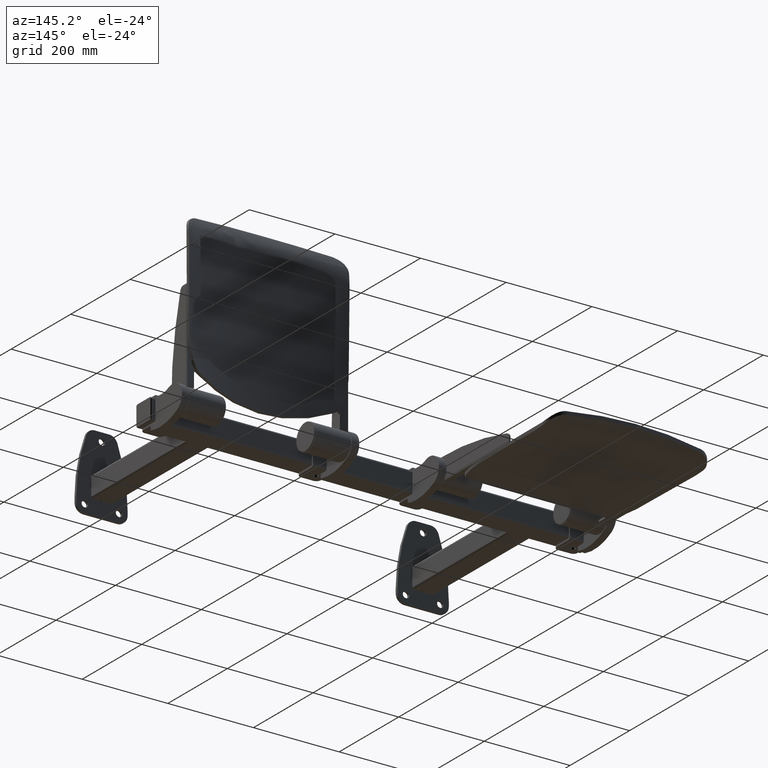
[diagram: clean part render]
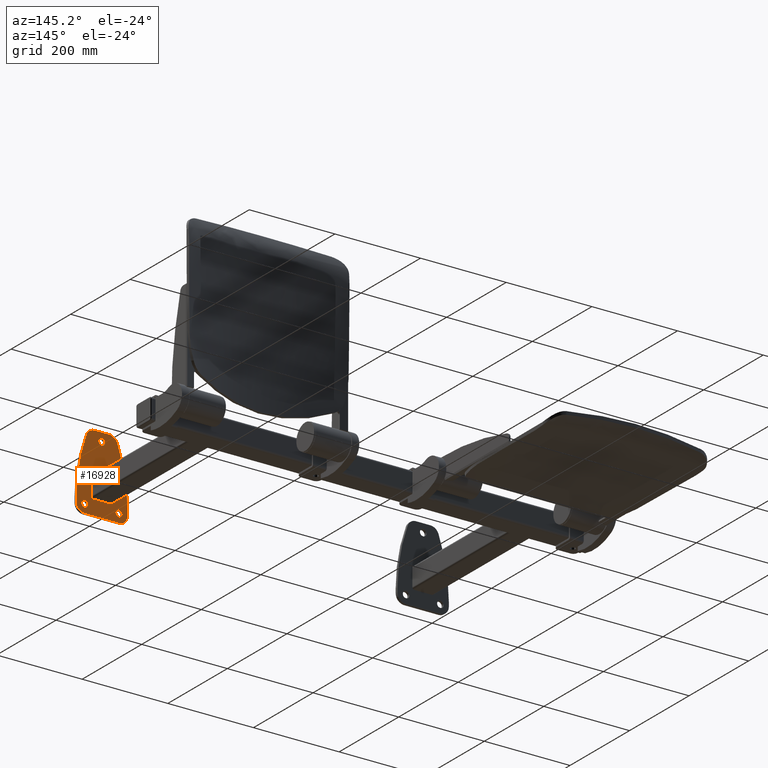
[diagram: same view with one face highlighted and labeled with its STEP entity id]
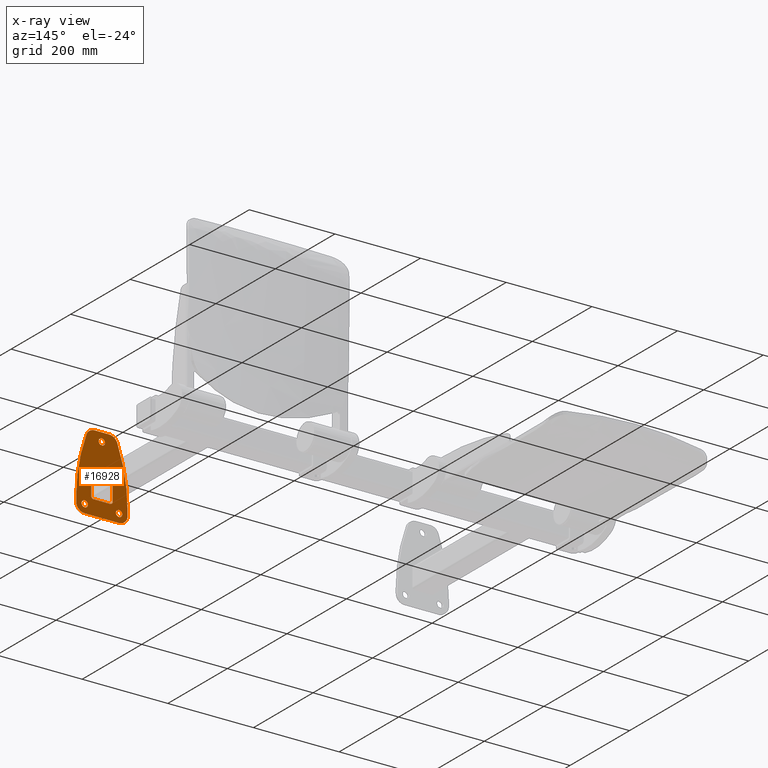
[diagram: x-ray of the same camera — body ghosted, the highlighted face saturated]
A machine part, auxiliary view. The second image highlights one B-rep face of the part: STEP entity #16928.
The next image is the same camera in x-ray: the body ghosted, the highlighted face saturated — about 0% of this face is hidden behind the body in this view.
In plain terms, the highlighted planar face has unit normal (0, -1, 0).
Its self-contained STEP definition (entity closure, byte-faithful):
#12 = AXIS2_PLACEMENT_3D ( 'NONE', #12852, #12849, #12854 ) ;
#177 = CARTESIAN_POINT ( 'NONE',  ( 400.0000000000000000, 6.000000000000000000, 20.00000000000000000 ) ) ;
#184 = CARTESIAN_POINT ( 'NONE',  ( 350.0000000000000000, 6.000000000000000000, -19.99999999999999600 ) ) ;
#185 = CARTESIAN_POINT ( 'NONE',  ( 350.0000000000000000, 6.000000000000000000, 20.00000000000000000 ) ) ;
#472 = LINE ( 'NONE', #8030, #475 ) ;
#475 = VECTOR ( 'NONE', #8031, 1000.000000000000000 ) ;
#487 = LINE ( 'NONE', #11218, #491 ) ;
#491 = VECTOR ( 'NONE', #11223, 1000.000000000000000 ) ;
#549 = CARTESIAN_POINT ( 'NONE',  ( 375.0000000000000000, 6.000000000000000000, 100.0000000000000000 ) ) ;
#550 = DIRECTION ( 'NONE',  ( -0.0000000000000000000, 1.000000000000000000, -0.0000000000000000000 ) ) ;
#551 = DIRECTION ( 'NONE',  ( 0.0000000000000000000, 0.0000000000000000000, -1.000000000000000000 ) ) ;
#1694 = FACE_OUTER_BOUND ( 'NONE', #14785, .T. ) ;
#1696 = FACE_BOUND ( 'NONE', #14787, .T. ) ;
#1697 = FACE_BOUND ( 'NONE', #14907, .T. ) ;
#1699 = FACE_BOUND ( 'NONE', #14783, .T. ) ;
#1701 = FACE_BOUND ( 'NONE', #14784, .T. ) ;
#1805 = CARTESIAN_POINT ( 'NONE',  ( 435.0000000000000600, 6.000000000000000000, -39.99999999999997900 ) ) ;
#1882 = CARTESIAN_POINT ( 'NONE',  ( 400.0000000000000000, 6.000000000000000000, -19.99999999999999600 ) ) ;
#1889 = CARTESIAN_POINT ( 'NONE',  ( 314.9999999999999400, 6.000000000000000000, -39.99999999999995000 ) ) ;
#1891 = CARTESIAN_POINT ( 'NONE',  ( 415.0000000000000600, 6.000000000000000000, -60.00000000000005000 ) ) ;
#1914 = CARTESIAN_POINT ( 'NONE',  ( 355.0000000000000000, 6.000000000000000000, 25.00000000000000000 ) ) ;
#1915 = CARTESIAN_POINT ( 'NONE',  ( 355.0000000000000000, 6.000000000000000000, -25.00000000000000000 ) ) ;
#1917 = CARTESIAN_POINT ( 'NONE',  ( 395.0000000000000000, 6.000000000000000000, -25.00000000000000000 ) ) ;
#2007 = CARTESIAN_POINT ( 'NONE',  ( 395.0000000000000000, 6.000000000000000000, 25.00000000000000000 ) ) ;
#2030 = VERTEX_POINT ( 'NONE', #177 ) ;
#2037 = VERTEX_POINT ( 'NONE', #184 ) ;
#2038 = VERTEX_POINT ( 'NONE', #185 ) ;
#2348 = CARTESIAN_POINT ( 'NONE',  ( 415.0000000000000600, 6.000000000000000000, -40.00000000000004300 ) ) ;
#2349 = DIRECTION ( 'NONE',  ( -0.0000000000000000000, 1.000000000000000000, 0.0000000000000000000 ) ) ;
#2350 = DIRECTION ( 'NONE',  ( -2.775557561562891700E-015, 0.0000000000000000000, -1.000000000000000000 ) ) ;
#2353 = CARTESIAN_POINT ( 'NONE',  ( 355.0000000000000000, 6.000000000000005300, -19.99999999999999600 ) ) ;
#2354 = DIRECTION ( 'NONE',  ( 0.0000000000000000000, -1.000000000000000000, -0.0000000000000000000 ) ) ;
#2355 = DIRECTION ( 'NONE',  ( 0.0000000000000000000, 0.0000000000000000000, -1.000000000000000000 ) ) ;
#2356 = CARTESIAN_POINT ( 'NONE',  ( 400.0000000000000000, 6.000000000000000000, 25.00000000000000000 ) ) ;
#2357 = DIRECTION ( 'NONE',  ( -0.0000000000000000000, -0.0000000000000000000, -1.000000000000000000 ) ) ;
#2360 = CARTESIAN_POINT ( 'NONE',  ( 395.0000000000000000, 6.000000000000000000, 20.00000000000000000 ) ) ;
#2361 = DIRECTION ( 'NONE',  ( 0.0000000000000000000, -1.000000000000000000, -0.0000000000000000000 ) ) ;
#2362 = DIRECTION ( 'NONE',  ( 0.0000000000000000000, 0.0000000000000000000, -1.000000000000000000 ) ) ;
#2419 = CARTESIAN_POINT ( 'NONE',  ( 315.0000000000000000, 6.000000000000000000, 119.9999999999999700 ) ) ;
#2420 = DIRECTION ( 'NONE',  ( 1.000000000000000000, 0.0000000000000000000, -2.312964634635743000E-016 ) ) ;
#2421 = CARTESIAN_POINT ( 'NONE',  ( 715.0000000000000000, 6.000000000000000000, -29.99999999999995700 ) ) ;
#2422 = DIRECTION ( 'NONE',  ( -0.0000000000000000000, -1.000000000000000000, -0.0000000000000000000 ) ) ;
#2423 = DIRECTION ( 'NONE',  ( 0.0000000000000000000, 0.0000000000000000000, 1.000000000000000000 ) ) ;
#2426 = CARTESIAN_POINT ( 'NONE',  ( 357.9285785728573600, 6.000000000000000000, 99.99999999999995700 ) ) ;
#2427 = DIRECTION ( 'NONE',  ( -0.0000000000000000000, 1.000000000000000000, 0.0000000000000000000 ) ) ;
#2428 = DIRECTION ( 'NONE',  ( 2.775557561562891000E-015, 0.0000000000000000000, -1.000000000000000000 ) ) ;
#2433 = CARTESIAN_POINT ( 'NONE',  ( 392.0714214271425800, 6.000000000000000000, 99.99999999999992900 ) ) ;
#2434 = DIRECTION ( 'NONE',  ( -0.0000000000000000000, 1.000000000000000000, 0.0000000000000000000 ) ) ;
#2435 = DIRECTION ( 'NONE',  ( 0.0000000000000000000, 0.0000000000000000000, -1.000000000000000000 ) ) ;
#2437 = CARTESIAN_POINT ( 'NONE',  ( 35.00000000000002800, 6.000000000000000000, -29.99999999999994300 ) ) ;
#2438 = DIRECTION ( 'NONE',  ( 0.0000000000000000000, -1.000000000000000000, 0.0000000000000000000 ) ) ;
#2439 = DIRECTION ( 'NONE',  ( 0.0000000000000000000, 0.0000000000000000000, -1.000000000000000000 ) ) ;
#6034 = CIRCLE ( 'NONE', #8375, 7.500000000000013300 ) ;
#6036 = CIRCLE ( 'NONE', #8376, 5.000000000000000900 ) ;
#6040 = CIRCLE ( 'NONE', #8377, 7.500000000000020400 ) ;
#6045 = LINE ( 'NONE', #11185, #6077 ) ;
#6047 = LINE ( 'NONE', #11162, #6049 ) ;
#6049 = VECTOR ( 'NONE', #11166, 1000.000000000000000 ) ;
#6051 = CIRCLE ( 'NONE', #8378, 7.500000000000013300 ) ;
#6053 = LINE ( 'NONE', #11167, #6058 ) ;
#6055 = CIRCLE ( 'NONE', #8379, 5.000000000000000900 ) ;
#6058 = VECTOR ( 'NONE', #11168, 1000.000000000000000 ) ;
#6062 = LINE ( 'NONE', #11175, #6066 ) ;
#6064 = CIRCLE ( 'NONE', #8381, 20.00000000000000400 ) ;
#6066 = VECTOR ( 'NONE', #11176, 1000.000000000000000 ) ;
#6077 = VECTOR ( 'NONE', #11189, 1000.000000000000000 ) ;
#6107 = CIRCLE ( 'NONE', #8385, 19.99999999999999600 ) ;
#6112 = CIRCLE ( 'NONE', #8386, 5.000000000000000900 ) ;
#6116 = LINE ( 'NONE', #2356, #6123 ) ;
#6120 = CIRCLE ( 'NONE', #8387, 5.000000000000000900 ) ;
#6123 = VECTOR ( 'NONE', #2357, 1000.000000000000000 ) ;
#6235 = CIRCLE ( 'NONE', #8392, 400.0000000000000000 ) ;
#6240 = CIRCLE ( 'NONE', #8393, 20.00000000000000400 ) ;
#6242 = LINE ( 'NONE', #2419, #6246 ) ;
#6246 = VECTOR ( 'NONE', #2420, 1000.000000000000000 ) ;
#6248 = CIRCLE ( 'NONE', #8394, 20.00000000000000400 ) ;
#6255 = CIRCLE ( 'NONE', #8395, 400.0000000000000000 ) ;
#8030 = CARTESIAN_POINT ( 'NONE',  ( 350.0000000000000000, 6.000000000000000000, -25.00000000000000000 ) ) ;
#8031 = DIRECTION ( 'NONE',  ( 1.000000000000000000, 0.0000000000000000000, 0.0000000000000000000 ) ) ;
#8198 = CARTESIAN_POINT ( 'NONE',  ( 334.9999999999999400, 6.000000000000000000, -39.99999999999993600 ) ) ;
#8199 = DIRECTION ( 'NONE',  ( -0.0000000000000000000, 1.000000000000000000, -0.0000000000000000000 ) ) ;
#8200 = DIRECTION ( 'NONE',  ( 0.0000000000000000000, 0.0000000000000000000, -1.000000000000000000 ) ) ;
#8201 = CARTESIAN_POINT ( 'NONE',  ( 415.0000000000000600, 6.000000000000000000, -39.99999999999992200 ) ) ;
#8202 = DIRECTION ( 'NONE',  ( -0.0000000000000000000, 1.000000000000000000, -0.0000000000000000000 ) ) ;
#8203 = DIRECTION ( 'NONE',  ( 0.0000000000000000000, 0.0000000000000000000, -1.000000000000000000 ) ) ;
#8375 = AXIS2_PLACEMENT_3D ( 'NONE', #11159, #11160, #11161 ) ;
#8376 = AXIS2_PLACEMENT_3D ( 'NONE', #11163, #11164, #11165 ) ;
#8377 = AXIS2_PLACEMENT_3D ( 'NONE', #11169, #11170, #11171 ) ;
#8378 = AXIS2_PLACEMENT_3D ( 'NONE', #11172, #11173, #11174 ) ;
#8379 = AXIS2_PLACEMENT_3D ( 'NONE', #11177, #11178, #11179 ) ;
#8381 = AXIS2_PLACEMENT_3D ( 'NONE', #11186, #11187, #11188 ) ;
#8385 = AXIS2_PLACEMENT_3D ( 'NONE', #2348, #2349, #2350 ) ;
#8386 = AXIS2_PLACEMENT_3D ( 'NONE', #2353, #2354, #2355 ) ;
#8387 = AXIS2_PLACEMENT_3D ( 'NONE', #2360, #2361, #2362 ) ;
#8392 = AXIS2_PLACEMENT_3D ( 'NONE', #2421, #2422, #2423 ) ;
#8393 = AXIS2_PLACEMENT_3D ( 'NONE', #2426, #2427, #2428 ) ;
#8394 = AXIS2_PLACEMENT_3D ( 'NONE', #2433, #2434, #2435 ) ;
#8395 = AXIS2_PLACEMENT_3D ( 'NONE', #2437, #2438, #2439 ) ;
#11159 = CARTESIAN_POINT ( 'NONE',  ( 334.9999999999999400, 6.000000000000000000, -39.99999999999993600 ) ) ;
#11160 = DIRECTION ( 'NONE',  ( -0.0000000000000000000, 1.000000000000000000, -0.0000000000000000000 ) ) ;
#11161 = DIRECTION ( 'NONE',  ( 0.0000000000000000000, 0.0000000000000000000, -1.000000000000000000 ) ) ;
#11162 = CARTESIAN_POINT ( 'NONE',  ( 435.0000000000000000, 6.000000000000000000, 119.9999999999999400 ) ) ;
#11163 = CARTESIAN_POINT ( 'NONE',  ( 395.0000000000000000, 6.000000000000000000, -19.99999999999999600 ) ) ;
#11164 = DIRECTION ( 'NONE',  ( 0.0000000000000000000, -1.000000000000000000, -0.0000000000000000000 ) ) ;
#11165 = DIRECTION ( 'NONE',  ( 0.0000000000000000000, 0.0000000000000000000, -1.000000000000000000 ) ) ;
#11166 = DIRECTION ( 'NONE',  ( 3.083952846180990800E-016, 0.0000000000000000000, -1.000000000000000000 ) ) ;
#11167 = CARTESIAN_POINT ( 'NONE',  ( 350.0000000000000000, 6.000000000000000000, 25.00000000000000000 ) ) ;
#11168 = DIRECTION ( 'NONE',  ( -0.0000000000000000000, -0.0000000000000000000, -1.000000000000000000 ) ) ;
#11169 = CARTESIAN_POINT ( 'NONE',  ( 375.0000000000000000, 6.000000000000000000, 100.0000000000000000 ) ) ;
#11170 = DIRECTION ( 'NONE',  ( -0.0000000000000000000, 1.000000000000000000, -0.0000000000000000000 ) ) ;
#11171 = DIRECTION ( 'NONE',  ( 0.0000000000000000000, 0.0000000000000000000, -1.000000000000000000 ) ) ;
#11172 = CARTESIAN_POINT ( 'NONE',  ( 415.0000000000000600, 6.000000000000000000, -39.99999999999992200 ) ) ;
#11173 = DIRECTION ( 'NONE',  ( -0.0000000000000000000, 1.000000000000000000, -0.0000000000000000000 ) ) ;
#11174 = DIRECTION ( 'NONE',  ( 0.0000000000000000000, 0.0000000000000000000, -1.000000000000000000 ) ) ;
#11175 = CARTESIAN_POINT ( 'NONE',  ( 314.9999999999999400, 6.000000000000000000, -60.00000000000002800 ) ) ;
#11176 = DIRECTION ( 'NONE',  ( -1.000000000000000000, -0.0000000000000000000, 2.312964634635741000E-016 ) ) ;
#11177 = CARTESIAN_POINT ( 'NONE',  ( 355.0000000000000000, 6.000000000000000000, 20.00000000000000000 ) ) ;
#11178 = DIRECTION ( 'NONE',  ( 0.0000000000000000000, -1.000000000000000000, -0.0000000000000000000 ) ) ;
#11179 = DIRECTION ( 'NONE',  ( 0.0000000000000000000, 0.0000000000000000000, -1.000000000000000000 ) ) ;
#11185 = CARTESIAN_POINT ( 'NONE',  ( 315.0000000000000000, 6.000000000000000000, 119.9999999999999700 ) ) ;
#11186 = CARTESIAN_POINT ( 'NONE',  ( 334.9999999999999400, 6.000000000000000000, -40.00000000000000700 ) ) ;
#11187 = DIRECTION ( 'NONE',  ( -0.0000000000000000000, 1.000000000000000000, 0.0000000000000000000 ) ) ;
#11188 = DIRECTION ( 'NONE',  ( 0.0000000000000000000, 0.0000000000000000000, -1.000000000000000000 ) ) ;
#11189 = DIRECTION ( 'NONE',  ( 3.083952846180990800E-016, -0.0000000000000000000, 1.000000000000000000 ) ) ;
#11218 = CARTESIAN_POINT ( 'NONE',  ( 350.0000000000000000, 6.000000000000000000, 25.00000000000000000 ) ) ;
#11223 = DIRECTION ( 'NONE',  ( 1.000000000000000000, 0.0000000000000000000, 0.0000000000000000000 ) ) ;
#12849 = DIRECTION ( 'NONE',  ( 0.0000000000000000000, -1.000000000000000000, 0.0000000000000000000 ) ) ;
#12850 = PLANE ( 'NONE',  #12 ) ;
#12852 = CARTESIAN_POINT ( 'NONE',  ( 315.0000000000000000, 6.000000000000000000, 119.9999999999999700 ) ) ;
#12854 = DIRECTION ( 'NONE',  ( 0.0000000000000000000, 0.0000000000000000000, -1.000000000000000000 ) ) ;
#13833 = CARTESIAN_POINT ( 'NONE',  ( 334.9999999999999400, 6.000000000000000000, -60.00000000000003600 ) ) ;
#13835 = CARTESIAN_POINT ( 'NONE',  ( 339.1353458661656600, 6.000000000000000000, 106.8421052631578300 ) ) ;
#13837 = CARTESIAN_POINT ( 'NONE',  ( 314.9999999999999400, 6.000000000000000000, -29.99999999999995700 ) ) ;
#13838 = CARTESIAN_POINT ( 'NONE',  ( 435.0000000000000600, 6.000000000000000000, -29.99999999999994300 ) ) ;
#13839 = CARTESIAN_POINT ( 'NONE',  ( 357.9285785728573600, 6.000000000000000000, 119.9999999999999600 ) ) ;
#13840 = CARTESIAN_POINT ( 'NONE',  ( 392.0714214271425800, 6.000000000000000000, 119.9999999999999600 ) ) ;
#13861 = CARTESIAN_POINT ( 'NONE',  ( 410.8646541338343400, 6.000000000000000000, 106.8421052631578200 ) ) ;
#13891 = CARTESIAN_POINT ( 'NONE',  ( 375.0000000000000000, 6.000000000000000000, 92.49999999999998600 ) ) ;
#13896 = CARTESIAN_POINT ( 'NONE',  ( 375.0000000000000000, 6.000000000000000000, 107.5000000000000300 ) ) ;
#13899 = CARTESIAN_POINT ( 'NONE',  ( 334.9999999999999400, 6.000000000000000000, -47.49999999999995000 ) ) ;
#13900 = CARTESIAN_POINT ( 'NONE',  ( 334.9999999999999400, 6.000000000000000000, -32.49999999999992200 ) ) ;
#14028 = VERTEX_POINT ( 'NONE', #1914 ) ;
#14029 = VERTEX_POINT ( 'NONE', #2007 ) ;
#14030 = VERTEX_POINT ( 'NONE', #1915 ) ;
#14034 = VERTEX_POINT ( 'NONE', #1917 ) ;
#14299 = VERTEX_POINT ( 'NONE', #1882 ) ;
#14306 = VERTEX_POINT ( 'NONE', #1889 ) ;
#14308 = VERTEX_POINT ( 'NONE', #1891 ) ;
#14364 = ORIENTED_EDGE ( 'NONE', *, *, #16478, .F. ) ;
#14365 = ORIENTED_EDGE ( 'NONE', *, *, #15176, .F. ) ;
#14366 = ORIENTED_EDGE ( 'NONE', *, *, #16474, .F. ) ;
#14367 = ORIENTED_EDGE ( 'NONE', *, *, #15206, .F. ) ;
#14368 = ORIENTED_EDGE ( 'NONE', *, *, #16479, .F. ) ;
#14369 = ORIENTED_EDGE ( 'NONE', *, *, #15208, .F. ) ;
#14370 = ORIENTED_EDGE ( 'NONE', *, *, #16483, .T. ) ;
#14371 = ORIENTED_EDGE ( 'NONE', *, *, #16484, .T. ) ;
#14372 = ORIENTED_EDGE ( 'NONE', *, *, #16486, .T. ) ;
#14373 = ORIENTED_EDGE ( 'NONE', *, *, #16529, .F. ) ;
#14374 = ORIENTED_EDGE ( 'NONE', *, *, #16530, .T. ) ;
#14375 = ORIENTED_EDGE ( 'NONE', *, *, #16531, .T. ) ;
#14376 = ORIENTED_EDGE ( 'NONE', *, *, #16533, .T. ) ;
#14377 = ORIENTED_EDGE ( 'NONE', *, *, #16535, .F. ) ;
#14378 = ORIENTED_EDGE ( 'NONE', *, *, #16477, .T. ) ;
#14379 = ORIENTED_EDGE ( 'NONE', *, *, #16496, .T. ) ;
#14380 = ORIENTED_EDGE ( 'NONE', *, *, #15121, .F. ) ;
#14381 = ORIENTED_EDGE ( 'NONE', *, *, #16481, .T. ) ;
#14382 = ORIENTED_EDGE ( 'NONE', *, *, #16480, .T. ) ;
#14383 = ORIENTED_EDGE ( 'NONE', *, *, #16497, .T. ) ;
#14384 = ORIENTED_EDGE ( 'NONE', *, *, #15111, .T. ) ;
#14385 = ORIENTED_EDGE ( 'NONE', *, *, #16475, .T. ) ;
#14386 = ORIENTED_EDGE ( 'NONE', *, *, #16499, .F. ) ;
#14387 = ORIENTED_EDGE ( 'NONE', *, *, #16500, .T. ) ;
#14623 = VERTEX_POINT ( 'NONE', #1805 ) ;
#14783 = EDGE_LOOP ( 'NONE', ( #14380, #14381, #14382, #14383, #14384, #14385, #14386, #14387 ) ) ;
#14784 = EDGE_LOOP ( 'NONE', ( #14366, #14367 ) ) ;
#14785 = EDGE_LOOP ( 'NONE', ( #14370, #14371, #14372, #14373, #14374, #14375, #14376, #14377, #14378, #14379 ) ) ;
#14787 = EDGE_LOOP ( 'NONE', ( #14368, #14369 ) ) ;
#14853 = VERTEX_POINT ( 'NONE', #13833 ) ;
#14855 = VERTEX_POINT ( 'NONE', #13835 ) ;
#14857 = VERTEX_POINT ( 'NONE', #13837 ) ;
#14858 = VERTEX_POINT ( 'NONE', #13838 ) ;
#14859 = VERTEX_POINT ( 'NONE', #13839 ) ;
#14860 = VERTEX_POINT ( 'NONE', #13840 ) ;
#14861 = VERTEX_POINT ( 'NONE', #13861 ) ;
#14907 = EDGE_LOOP ( 'NONE', ( #14364, #14365 ) ) ;
#14931 = VERTEX_POINT ( 'NONE', #13891 ) ;
#14936 = VERTEX_POINT ( 'NONE', #13896 ) ;
#14939 = VERTEX_POINT ( 'NONE', #13899 ) ;
#14940 = VERTEX_POINT ( 'NONE', #13900 ) ;
#14950 = VERTEX_POINT ( 'NONE', #15082 ) ;
#14956 = VERTEX_POINT ( 'NONE', #15088 ) ;
#15082 = CARTESIAN_POINT ( 'NONE',  ( 415.0000000000000600, 6.000000000000000000, -32.49999999999990800 ) ) ;
#15088 = CARTESIAN_POINT ( 'NONE',  ( 415.0000000000000600, 6.000000000000000000, -47.49999999999993600 ) ) ;
#15111 = EDGE_CURVE ( 'NONE', #14030, #14034, #472, .T. ) ;
#15121 = EDGE_CURVE ( 'NONE', #14028, #14029, #487, .T. ) ;
#15176 = EDGE_CURVE ( 'NONE', #14931, #14936, #16758, .T. ) ;
#15206 = EDGE_CURVE ( 'NONE', #14939, #14940, #16803, .T. ) ;
#15208 = EDGE_CURVE ( 'NONE', #14956, #14950, #16805, .T. ) ;
#15984 = AXIS2_PLACEMENT_3D ( 'NONE', #549, #550, #551 ) ;
#16000 = AXIS2_PLACEMENT_3D ( 'NONE', #8198, #8199, #8200 ) ;
#16001 = AXIS2_PLACEMENT_3D ( 'NONE', #8201, #8202, #8203 ) ;
#16474 = EDGE_CURVE ( 'NONE', #14940, #14939, #6034, .T. ) ;
#16475 = EDGE_CURVE ( 'NONE', #14034, #14299, #6036, .T. ) ;
#16477 = EDGE_CURVE ( 'NONE', #14858, #14623, #6047, .T. ) ;
#16478 = EDGE_CURVE ( 'NONE', #14936, #14931, #6040, .T. ) ;
#16479 = EDGE_CURVE ( 'NONE', #14950, #14956, #6051, .T. ) ;
#16480 = EDGE_CURVE ( 'NONE', #2038, #2037, #6053, .T. ) ;
#16481 = EDGE_CURVE ( 'NONE', #14028, #2038, #6055, .T. ) ;
#16483 = EDGE_CURVE ( 'NONE', #14308, #14853, #6062, .T. ) ;
#16484 = EDGE_CURVE ( 'NONE', #14853, #14306, #6064, .T. ) ;
#16486 = EDGE_CURVE ( 'NONE', #14306, #14857, #6045, .T. ) ;
#16496 = EDGE_CURVE ( 'NONE', #14623, #14308, #6107, .T. ) ;
#16497 = EDGE_CURVE ( 'NONE', #2037, #14030, #6112, .T. ) ;
#16499 = EDGE_CURVE ( 'NONE', #2030, #14299, #6116, .T. ) ;
#16500 = EDGE_CURVE ( 'NONE', #2030, #14029, #6120, .T. ) ;
#16529 = EDGE_CURVE ( 'NONE', #14855, #14857, #6235, .T. ) ;
#16530 = EDGE_CURVE ( 'NONE', #14855, #14859, #6240, .T. ) ;
#16531 = EDGE_CURVE ( 'NONE', #14859, #14860, #6242, .T. ) ;
#16533 = EDGE_CURVE ( 'NONE', #14860, #14861, #6248, .T. ) ;
#16535 = EDGE_CURVE ( 'NONE', #14858, #14861, #6255, .T. ) ;
#16758 = CIRCLE ( 'NONE', #15984, 7.500000000000020400 ) ;
#16803 = CIRCLE ( 'NONE', #16000, 7.500000000000013300 ) ;
#16805 = CIRCLE ( 'NONE', #16001, 7.500000000000013300 ) ;
#16928 = ADVANCED_FACE ( 'NONE', ( #1697, #1701, #1696, #1694, #1699 ), #12850, .F. ) ;